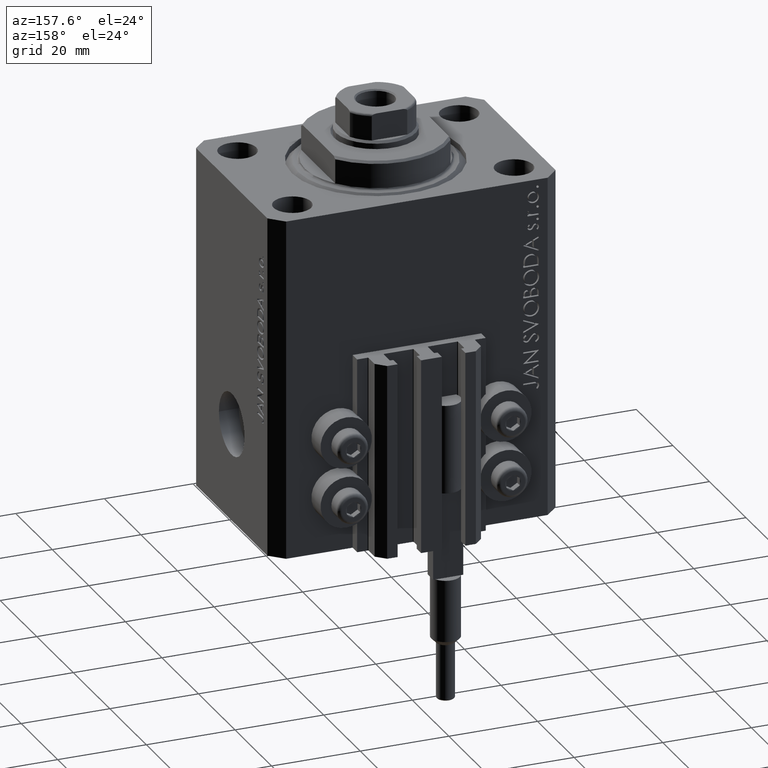
[diagram: clean part render]
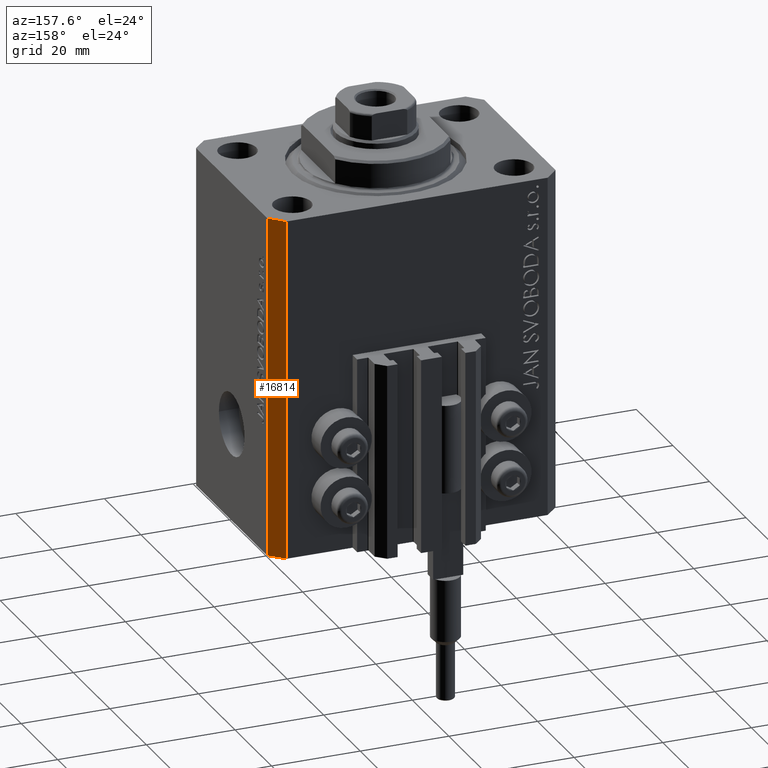
[diagram: same view with one face highlighted and labeled with its STEP entity id]
A machine part, auxiliary view. The second image highlights one B-rep face of the part: STEP entity #16814.
In plain terms, the highlighted planar face has unit normal (0.7071, 0.7071, 0).
Its self-contained STEP definition (entity closure, byte-faithful):
#1002 = CARTESIAN_POINT ( 'NONE',  ( 32.49999999999702993, 19.49999999999945999, -77.00000000000000000 ) ) ;
#1372 = VECTOR ( 'NONE', #5314, 1000.000000000000000 ) ;
#5314 = DIRECTION ( 'NONE',  ( 0.000000000000000000, 0.000000000000000000, 1.000000000000000000 ) ) ;
#5629 = LINE ( 'NONE', #9061, #11131 ) ;
#6071 = EDGE_CURVE ( 'NONE', #24834, #46666, #27550, .T. ) ;
#7845 = DIRECTION ( 'NONE',  ( -0.7071067811865344721, 0.7071067811865606734, 0.000000000000000000 ) ) ;
#8757 = ORIENTED_EDGE ( 'NONE', *, *, #6071, .T. ) ;
#9001 = DIRECTION ( 'NONE',  ( 0.000000000000000000, 0.000000000000000000, 1.000000000000000000 ) ) ;
#9061 = CARTESIAN_POINT ( 'NONE',  ( 32.49999999999702993, 19.49999999999945999, 0.000000000000000000 ) ) ;
#9453 = LINE ( 'NONE', #38756, #1372 ) ;
#10465 = DIRECTION ( 'NONE',  ( -0.7071067811865344721, 0.7071067811865606734, 0.000000000000000000 ) ) ;
#11131 = VECTOR ( 'NONE', #46611, 1000.000000000000000 ) ;
#13012 = CARTESIAN_POINT ( 'NONE',  ( 29.49999999999707967, 22.49999999999952038, -77.00000000000000000 ) ) ;
#14515 = CARTESIAN_POINT ( 'NONE',  ( 32.49999999999702993, 19.49999999999945999, -77.00000000000000000 ) ) ;
#16814 = ADVANCED_FACE ( 'NONE', ( #33426 ), #37076, .T. ) ;
#17943 = ORIENTED_EDGE ( 'NONE', *, *, #47203, .F. ) ;
#18510 = DIRECTION ( 'NONE',  ( 0.7071067811865606734, 0.7071067811865344721, -0.000000000000000000 ) ) ;
#18890 = ORIENTED_EDGE ( 'NONE', *, *, #27792, .T. ) ;
#24834 = VERTEX_POINT ( 'NONE', #13012 ) ;
#26226 = VERTEX_POINT ( 'NONE', #32685 ) ;
#27074 = CARTESIAN_POINT ( 'NONE',  ( 29.49999999999707967, 22.49999999999952038, -77.00000000000000000 ) ) ;
#27550 = LINE ( 'NONE', #27074, #47143 ) ;
#27792 = EDGE_CURVE ( 'NONE', #43688, #24834, #30322, .T. ) ;
#30322 = LINE ( 'NONE', #1002, #39829 ) ;
#31342 = EDGE_LOOP ( 'NONE', ( #38458, #17943, #18890, #8757 ) ) ;
#32364 = EDGE_CURVE ( 'NONE', #26226, #46666, #5629, .T. ) ;
#32685 = CARTESIAN_POINT ( 'NONE',  ( 32.49999999999702993, 19.49999999999945999, 0.000000000000000000 ) ) ;
#33426 = FACE_OUTER_BOUND ( 'NONE', #31342, .T. ) ;
#37076 = PLANE ( 'NONE',  #40470 ) ;
#38102 = CARTESIAN_POINT ( 'NONE',  ( 29.49999999999707967, 22.49999999999952038, 0.000000000000000000 ) ) ;
#38458 = ORIENTED_EDGE ( 'NONE', *, *, #32364, .F. ) ;
#38756 = CARTESIAN_POINT ( 'NONE',  ( 32.49999999999702993, 19.49999999999945999, -77.00000000000000000 ) ) ;
#39829 = VECTOR ( 'NONE', #7845, 1000.000000000000000 ) ;
#40470 = AXIS2_PLACEMENT_3D ( 'NONE', #48274, #18510, #10465 ) ;
#43688 = VERTEX_POINT ( 'NONE', #14515 ) ;
#46611 = DIRECTION ( 'NONE',  ( -0.7071067811865344721, 0.7071067811865606734, 0.000000000000000000 ) ) ;
#46666 = VERTEX_POINT ( 'NONE', #38102 ) ;
#47143 = VECTOR ( 'NONE', #9001, 1000.000000000000000 ) ;
#47203 = EDGE_CURVE ( 'NONE', #43688, #26226, #9453, .T. ) ;
#48274 = CARTESIAN_POINT ( 'NONE',  ( 32.49999999999702993, 19.49999999999945999, -77.00000000000000000 ) ) ;